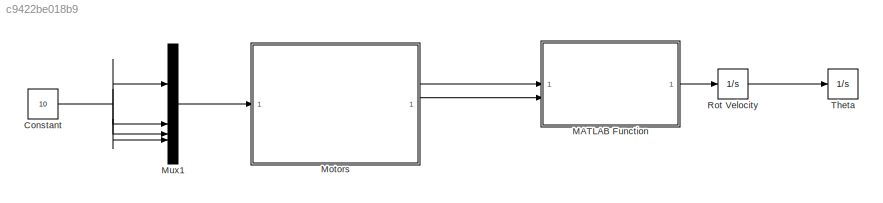
MODEL slx_c9422be018b9
KIND model
CONFIG AbsTol = auto
CONFIG EnableMultiTasking = off
CONFIG FixedStep = 0.01
CONFIG MaxStep = auto
CONFIG MinStep = auto
CONFIG RelTol = 1e-3
CONFIG SampleTimeConstraint = Unconstrained
CONFIG SolverName = FixedStepDiscrete
CONFIG StartTime = 0.0
CONFIG StopTime = 0.1
BLOCK [Constant] Constant
  SampleTime = 0.01
  Value = 10
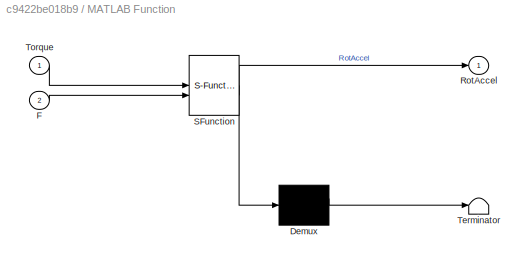
BLOCK [SubSystem] MATLAB Function
  ErrorFcn = Stateflow.Translate.translate
  LibrarySourceBlock = simulink/User-Defined\nFunctions/MATLAB Function
  PermitHierarchicalResolution = ExplicitOnly
  SFBlockType = MATLAB Function
  TreatAsAtomicUnit = on
BLOCK [Demux] MATLAB Function/ Demux 
  Outputs = 1
BLOCK [S-Function] MATLAB Function/ SFunction 
  EnableBusSupport = off
  FunctionName = sf_sfun
  PortCounts = [2 2]
  SFcnIsStateOwnerBlock = off
  SFunctionDeploymentMode = off
  Tag = Stateflow S-Function 1
BLOCK [Terminator] MATLAB Function/ Terminator 
BLOCK [Inport] MATLAB Function/F
  Port = 2
BLOCK [Outport] MATLAB Function/RotAccel
BLOCK [Inport] MATLAB Function/Torque
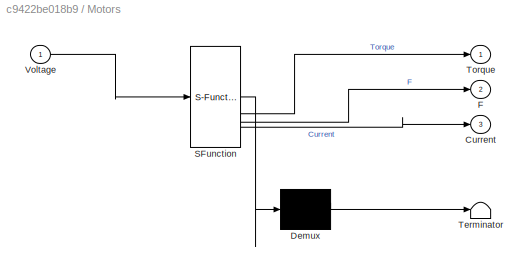
BLOCK [SubSystem] Motors
  ErrorFcn = Stateflow.Translate.translate
  LibrarySourceBlock = simulink/User-Defined\nFunctions/MATLAB Function
  PermitHierarchicalResolution = ExplicitOnly
  SFBlockType = MATLAB Function
  TreatAsAtomicUnit = on
BLOCK [Demux] Motors/ Demux 
  Outputs = 1
BLOCK [S-Function] Motors/ SFunction 
  EnableBusSupport = on
  FunctionName = sf_sfun
  PortCounts = [1 4]
  SFcnIsStateOwnerBlock = off
  SFunctionDeploymentMode = off
  Tag = Stateflow S-Function 2
BLOCK [Terminator] Motors/ Terminator 
BLOCK [Outport] Motors/Current
  Port = 3
BLOCK [Outport] Motors/F
  Port = 2
BLOCK [Outport] Motors/Torque
BLOCK [Inport] Motors/Voltage
BLOCK [Mux] Mux1
  DisplayOption = bar
BLOCK [Integrator] Rot Velocity
BLOCK [Integrator] Theta
NET Constant:1 -> Mux1:1, Mux1:2, Mux1:3, Mux1:4
LINE MATLAB Function:1 -> Rot Velocity:1
LINE Motors:1 -> MATLAB Function:1
LINE Motors:2 -> MATLAB Function:2
LINE Mux1:1 -> Motors:1
LINE Rot Velocity:1 -> Theta:1
note: NET lines group one-source signal fan-out (src -> all destinations, sorted); 1:1 wires keep LINE
CHART Motors states=1 transitions=1
  STATE_LABEL 'eML_blk_kernel()'
  STATE_LABEL 'SCRIPT:\nfunction [Torque, F, Current] = fcn(Voltage)\n\nRPM = [0 0 0 0];\nTorque = [0 0 0 0];\nF = [0 0 0 0];\nCurrent = [0 0 0 0];\n\nfor i = 1:4\n    RPM(i) = -2.6931*Voltage(i)^3 + 1400*Voltage(i);\n    Ct = 2*10^-15 * RPM(i)^3 - 4*10^-11 * RPM(i)^2 + 3*10^-7 * RPM(i) + 0.10113;\n    F(i) = Ct * 1.225 * (RPM(i)/60)^2 * 0.2^4;\n    Torque(i) = 4*10^-14 * RPM(i)^3 + 8*10^-12 * RPM(i)^2 + 3*10^-6 * RPM(i);\n ...<+37ch>'
CHART MATLAB Function states=1 transitions=1
  STATE_LABEL 'eML_blk_kernel()'
  STATE_LABEL 'SCRIPT:\nfunction RotAccel = fcn(Torque, F)\n\nMoment = [0 0 0];\nRotAccel = [0 0 0];\nI = [0.003, 0.003, 0.007];\n\nMoment(1) = (F(3) + F(4)) * 0.237/2 - (F(1) + F(2))*0.237/2;\nMoment(2) = (F(3) + F(2)) * 0.237/2 - (F(1) + F(4))*0.237/2;\nMoment(3) = Torque(4) - Torque(1) + Torque(2) - Torque(3);\n\nfor i = 1:3\n    RotAccel(i) = Moment(i)/I(i);\nend'
CHART  states=0 transitions=0
CHART  states=0 transitions=0
